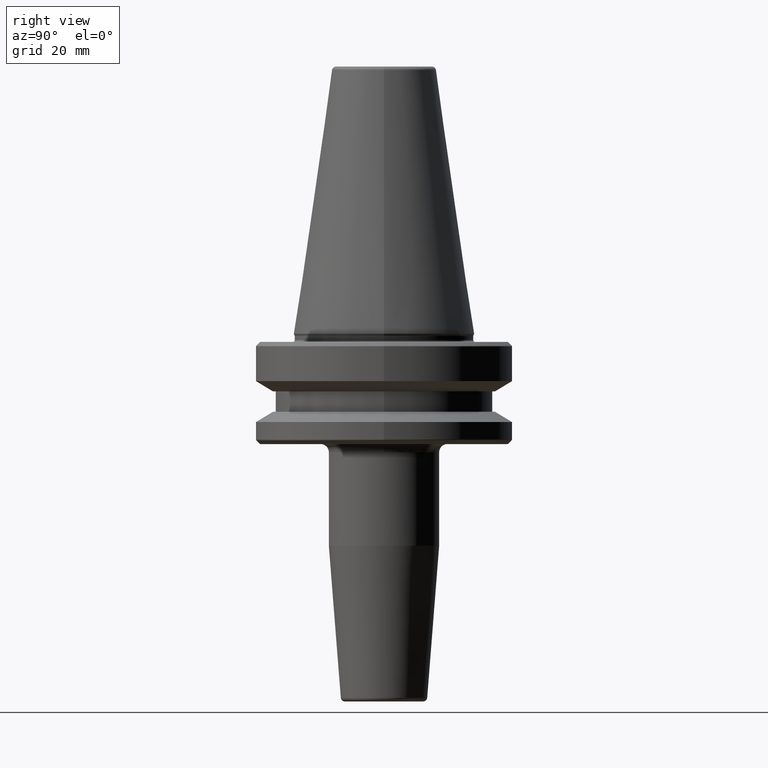
[diagram: clean part render]
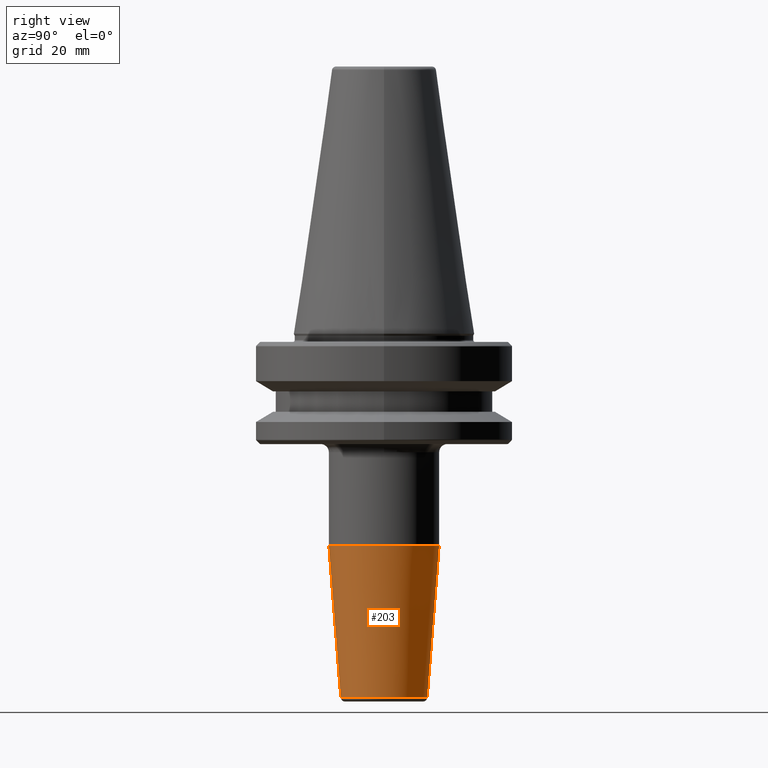
[diagram: same view with one face highlighted and labeled with its STEP entity id]
A machine part, right view. The second image highlights one B-rep face of the part: STEP entity #203.
In plain terms, the highlighted conical surface has half-angle 4.5 deg.
Its self-contained STEP definition (entity closure, byte-faithful):
#21 = VECTOR ( 'NONE', #960, 1000.000000000000000 ) ;
#42 = VERTEX_POINT ( 'NONE', #380 ) ;
#51 = ORIENTED_EDGE ( 'NONE', *, *, #1145, .T. ) ;
#81 = CARTESIAN_POINT ( 'NONE',  ( 1.294761115604651400E-015, -10.57252684207491100, -89.07845909572783700 ) ) ;
#83 = DIRECTION ( 'NONE',  ( 0.0000000000000000000, -1.000000000000000000, 0.0000000000000000000 ) ) ;
#87 = LINE ( 'NONE', #1170, #21 ) ;
#127 = EDGE_LOOP ( 'NONE', ( #319, #51, #1065, #163 ) ) ;
#163 = ORIENTED_EDGE ( 'NONE', *, *, #710, .F. ) ;
#203 = ADVANCED_FACE ( 'NONE', ( #788 ), #994, .T. ) ;
#247 = DIRECTION ( 'NONE',  ( 0.0000000000000000000, -2.332660569804487100E-017, 1.000000000000000000 ) ) ;
#251 = DIRECTION ( 'NONE',  ( 0.0000000000000000000, 1.000000000000000000, 0.0000000000000000000 ) ) ;
#319 = ORIENTED_EDGE ( 'NONE', *, *, #610, .F. ) ;
#380 = CARTESIAN_POINT ( 'NONE',  ( 1.653273178848926700E-015, 13.49999999999999800, -51.88138579147236800 ) ) ;
#411 = EDGE_CURVE ( 'NONE', #42, #1208, #660, .T. ) ;
#576 = DIRECTION ( 'NONE',  ( 0.0000000000000000000, 1.000000000000000000, 0.0000000000000000000 ) ) ;
#610 = EDGE_CURVE ( 'NONE', #1096, #663, #1056, .T. ) ;
#660 = CIRCLE ( 'NONE', #769, 13.49999999999999800 ) ;
#663 = VERTEX_POINT ( 'NONE', #81 ) ;
#665 = CARTESIAN_POINT ( 'NONE',  ( 0.0000000000000000000, 1.448079737668250500E-015, -89.07845909572783700 ) ) ;
#690 = CARTESIAN_POINT ( 'NONE',  ( 0.0000000000000000000, -13.49999999999999800, -51.88138579147236800 ) ) ;
#710 = EDGE_CURVE ( 'NONE', #663, #1208, #963, .T. ) ;
#737 = AXIS2_PLACEMENT_3D ( 'NONE', #665, #247, #83 ) ;
#744 = VECTOR ( 'NONE', #881, 1000.000000000000000 ) ;
#769 = AXIS2_PLACEMENT_3D ( 'NONE', #783, #873, #251 ) ;
#783 = CARTESIAN_POINT ( 'NONE',  ( 0.0000000000000000000, 5.803982755786119600E-016, -51.88138579147236800 ) ) ;
#788 = FACE_OUTER_BOUND ( 'NONE', #127, .T. ) ;
#873 = DIRECTION ( 'NONE',  ( -0.0000000000000000000, 2.332660569804487100E-017, -1.000000000000000000 ) ) ;
#881 = DIRECTION ( 'NONE',  ( 0.0000000000000000000, -0.07845909572783783800, 0.9969173337331285200 ) ) ;
#893 = CARTESIAN_POINT ( 'NONE',  ( 0.0000000000000000000, -10.57252684207490900, -89.07845909572783700 ) ) ;
#957 = CARTESIAN_POINT ( 'NONE',  ( 0.0000000000000000000, 10.57252684207491500, -89.07845909572783700 ) ) ;
#960 = DIRECTION ( 'NONE',  ( 9.608468044709235300E-018, 0.07845909572783778300, 0.9969173337331285200 ) ) ;
#963 = LINE ( 'NONE', #893, #744 ) ;
#994 = CONICAL_SURFACE ( 'NONE', #737, 10.57252684207491100, 0.07853981633973768100 ) ;
#1056 = CIRCLE ( 'NONE', #1171, 10.57252684207491100 ) ;
#1061 = CARTESIAN_POINT ( 'NONE',  ( 0.0000000000000000000, 1.448079737668250500E-015, -89.07845909572783700 ) ) ;
#1065 = ORIENTED_EDGE ( 'NONE', *, *, #411, .T. ) ;
#1096 = VERTEX_POINT ( 'NONE', #957 ) ;
#1145 = EDGE_CURVE ( 'NONE', #1096, #42, #87, .T. ) ;
#1170 = CARTESIAN_POINT ( 'NONE',  ( 1.294761115604651400E-015, 10.57252684207491300, -89.07845909572783700 ) ) ;
#1171 = AXIS2_PLACEMENT_3D ( 'NONE', #1061, #1172, #576 ) ;
#1172 = DIRECTION ( 'NONE',  ( -0.0000000000000000000, 2.332660569804487100E-017, -1.000000000000000000 ) ) ;
#1208 = VERTEX_POINT ( 'NONE', #690 ) ;